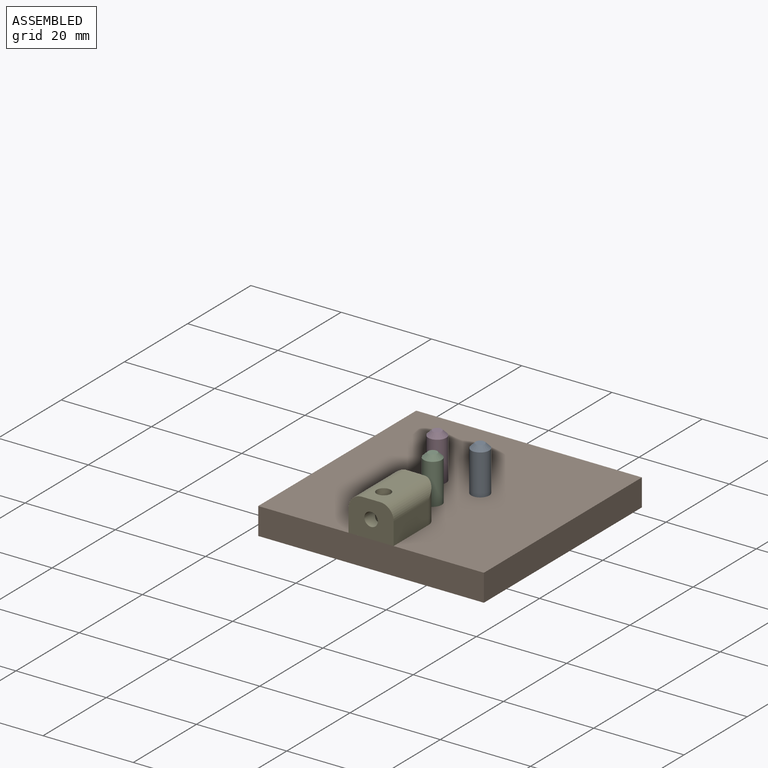
[diagram: assembled view]
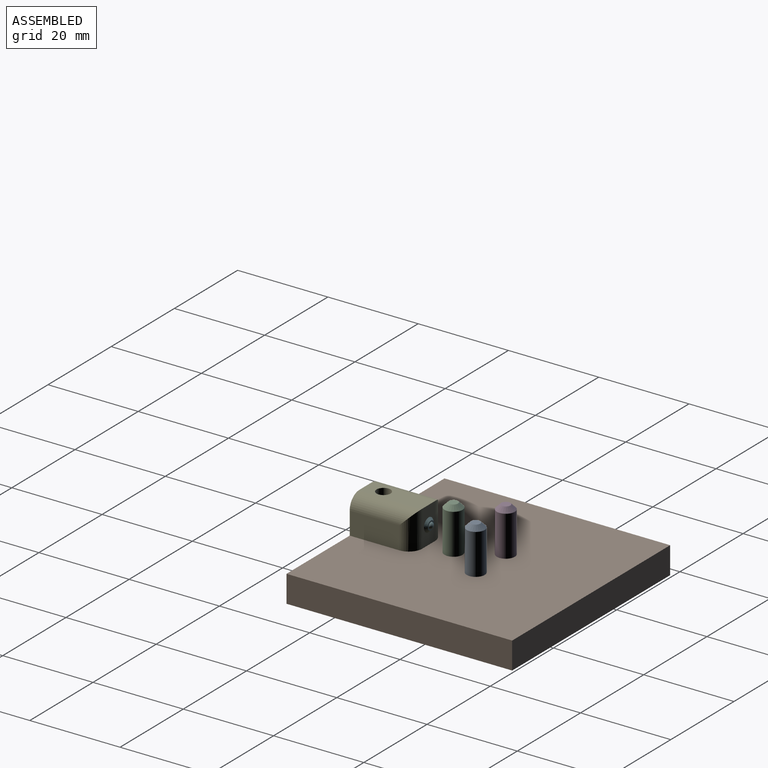
[diagram: assembled view, second angle]
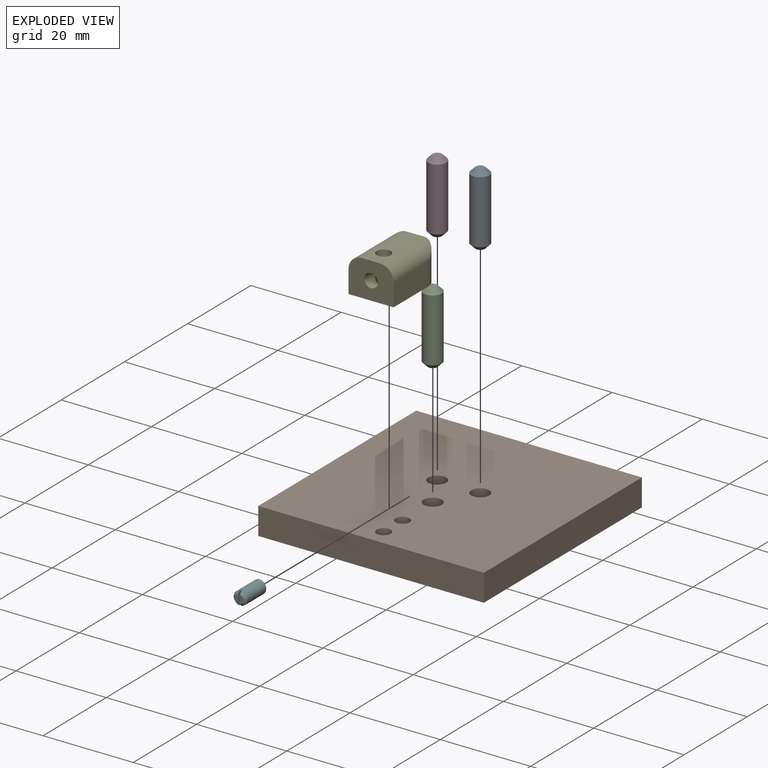
[diagram: exploded view]
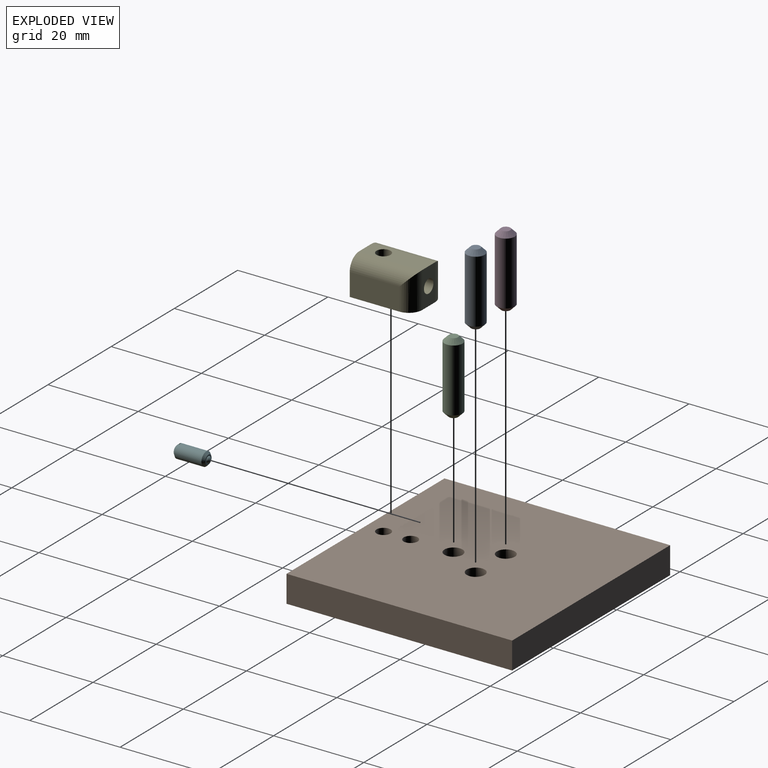
[diagram: exploded view, second angle]
ASSEMBLY  parts=6 mates=5
PART A: 5 faces, bbox 4x4x16 mm
  f0: cylinder r=2mm len=14mm, axis (0,0,-1), area 175.9mm2, adj f3,f4
  f1: plane 2x2mm, normal (0,0,1), area 3.1mm2, adj f4
  f2: plane 2x2mm, normal (0,0,-1), area 3.1mm2, adj f3
  f3: cone r=2mm half-angle=45deg, axis (0,0,1), area 13.3mm2, adj f0,f2
  f4: cone r=1mm half-angle=45deg, axis (0,0,-1), area 13.3mm2, adj f0,f1
PART B: 11 faces, bbox 50x50x6 mm
  f0: plane 50x6mm, normal (-1,0,0), area 300mm2, adj f1,f7,f9,f10
  f1: plane 50x6mm, normal (0,-1,0), area 300mm2, adj f0,f2,f9,f10
  f2: plane 50x6mm, normal (1,0,0), area 300mm2, adj f1,f7,f9,f10
  f3: cylinder r=1.55mm len=6mm, axis (0,0,-1), area 58.4mm2, adj f9,f10
  f4: cylinder r=2mm len=6mm, axis (0,0,-1), area 75.4mm2, adj f9,f10
  f5: cylinder r=2mm len=6mm, axis (0,0,-1), area 75.4mm2, adj f9,f10
  f6: cylinder r=2mm len=6mm, axis (0,0,-1), area 75.4mm2, adj f9,f10
  f7: plane 50x6mm, normal (0,1,0), area 300mm2, adj f0,f2,f9,f10
  f8: cylinder r=1.55mm len=6mm, axis (0,0,-1), area 58.4mm2, adj f9,f10
  f9: plane 50x50mm, normal (0,0,1), area 2447.2mm2, adj f0,f1,f2,f3,f4,f5,f6,f7
  f10: plane 50x50mm, normal (0,0,-1), area 2447.2mm2, adj f0,f1,f2,f3,f4,f5,f6,f7
PART C: same geometry as A
PART D: same geometry as A
PART E: 13 faces, bbox 10x14x8 mm
  f0: plane 10x8mm, normal (0,-1,0), area 69.1mm2, adj f1,f4,f5,f6,f8,f9,f11
  f1: plane 11x5mm, normal (1,0,0), area 55mm2, adj f0,f6,f9,f10
  f2: plane 8x4mm, normal (0,1,0), area 24.9mm2, adj f5,f6,f7,f10,f12
  f3: cylinder r=1.55mm len=8mm, axis (0,0,-1), area 60.7mm2, adj f5,f6,f7,f8
  f4: plane 11x5mm, normal (-1,0,0), area 55mm2, adj f0,f6,f11,f12
  f5: plane 14x4mm, normal (0,0,1), area 48.5mm2, adj f0,f2,f3,f9,f11
  f6: plane 14x10mm, normal (0,0,-1), area 128.6mm2, adj f0,f1,f2,f3,f4,f10,f12
  f7: cylinder r=1.5mm len=9.61mm, axis (0,1,0), area 84.3mm2, adj f2,f3
  f8: cylinder r=1.5mm len=3.61mm, axis (0,1,0), area 27.7mm2, adj f0,f3
  f9: cylinder r=3mm len=14mm, axis (0,-1,0), area 60.8mm2, adj f0,f1,f5,f10
  f10: cylinder r=3mm len=8mm, axis (0,0,-1), area 32.6mm2, adj f1,f2,f6,f9
  f11: cylinder r=3mm len=14mm, axis (0,1,0), area 60.8mm2, adj f0,f4,f5,f12
  f12: cylinder r=3mm len=8mm, axis (0,0,1), area 32.6mm2, adj f2,f4,f6,f11
PART F: 11 faces, bbox 3.1x7.6x3.1 mm
  f0: cone r=1.5mm half-angle=45deg, axis (0,1,0), area 5.6mm2, adj f1,f6
  f1: cylinder r=1.5mm len=6mm, axis (0,1,0), area 56.3mm2, adj f0,f4,f7,f8,f9,f10
  f2: sphere r=0.75mm, area 2.4mm2, adj f6
  f3: plane 1.94x0.75mm, normal (0,1,0), area 1.1mm2, adj f4,f9
  f4: cone r=1mm half-angle=45deg, axis (0,-1,0), area 2.4mm2, adj f1,f3,f9
  f5: plane 1.94x0.75mm, normal (0,1,0), area 1.1mm2, adj f7,f10
  f6: plane 2x2mm, normal (0,-1,0), area 1.6mm2, adj f0,f2
  f7: cone r=1mm half-angle=45deg, axis (0,-1,0), area 2.4mm2, adj f1,f5,f10
  f8: plane 3x0.5mm, normal (0,1,0), area 1.5mm2, adj f1,f9,f10
  f9: plane 3.03x0.82mm, normal (-1,0,0), area 2mm2, adj f1,f3,f4,f8
  f10: plane 3.03x0.82mm, normal (1,0,0), area 2mm2, adj f1,f5,f7,f8
PLACE A t=(33.89,18.51,-0.2)mm
PLACE B t=(4.13,-9.24,-0.2)mm fixed
PLACE C rot(axis=(0,0,1),90deg) t=(29.13,10.26,-0.2)mm
PLACE D t=(24.37,18.51,-0.2)mm
PLACE E t=(29.13,-2.24,5.8)mm
PLACE F rot(axis=(1,0,0),180deg) t=(29.13,5.26,9.8)mm
MATE revolute D.f0 <-> B.f4  axis (0,0,-1) through (24.37,18.51,-0.2)mm
MATE revolute F.f0 <-> E.f7  axis (0,-1,0) through (29.13,4.76,9.8)mm
MATE revolute C.f0 <-> B.f6  axis (0,0,-1) through (29.13,10.26,-0.2)mm
MATE revolute A.f0 <-> B.f5  axis (0,0,1) through (33.89,18.51,-0.2)mm
MATE revolute E.f3 <-> B.f3  axis (0,0,-1) through (29.13,-5.24,5.8)mm
